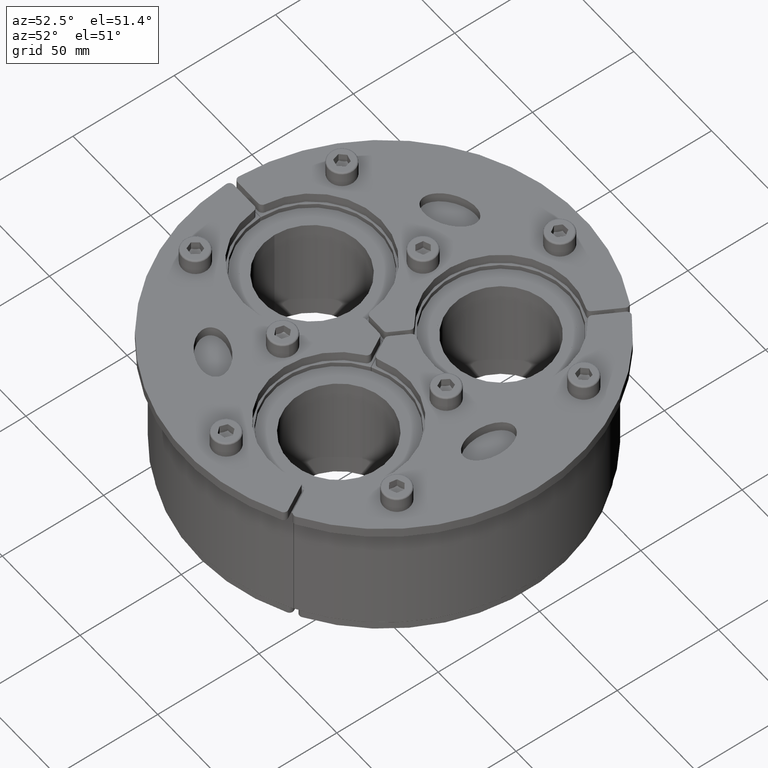
[diagram: clean part render]
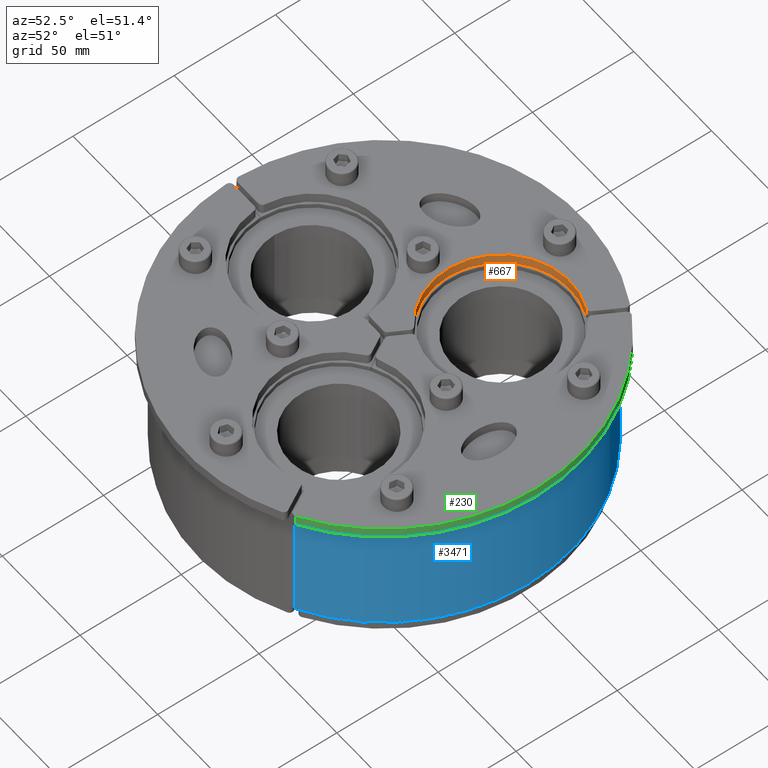
[diagram: same view with three faces highlighted in distinct colors, each labeled with its STEP entity id]
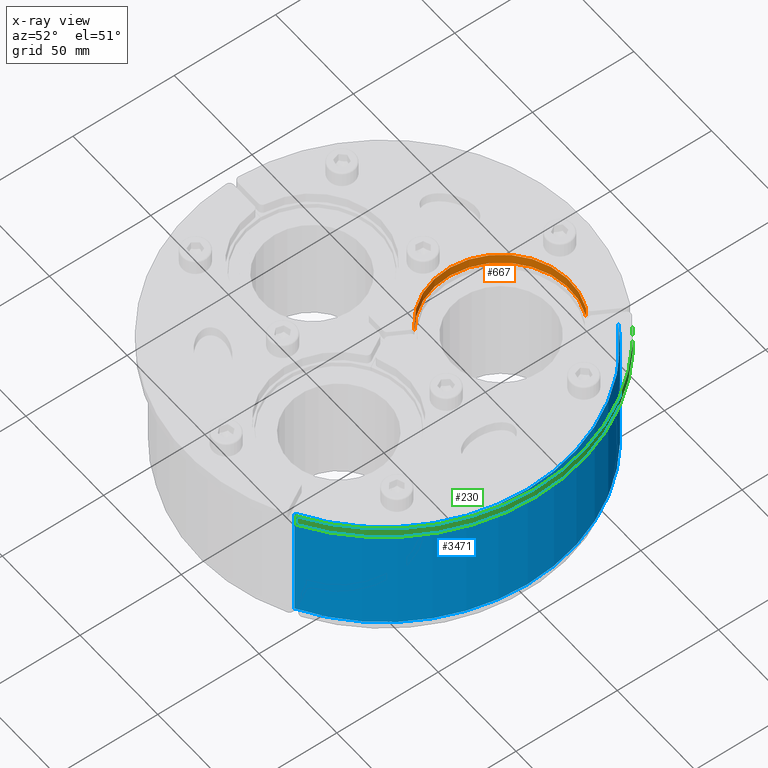
[diagram: x-ray of the same camera — body ghosted, the three highlighted faces saturated]
A machine part, auxiliary view with three faces highlighted in distinct colors.
The next image is the same camera in x-ray (body ghosted, the three faces saturated) — at least one of them is partly hidden behind the body in this view.
Their STEP definitions:

[orange] entity #667 — the highlighted cylindrical surface (partial cylindrical patch) has radius 34 mm, axis along (-0, -0, 1).
#297=CARTESIAN_POINT('',(-12.368261227879366,2.833333333333339,0.0));
#298=VERTEX_POINT('',#297);
#306=CARTESIAN_POINT('',(-80.131738772120627,2.833333333333333,0.0));
#307=VERTEX_POINT('',#306);
#308=CARTESIAN_POINT('',(-46.25,-1.387779E-016,0.0));
#309=DIRECTION('',(0.0,0.0,1.0));
#310=DIRECTION('',(-1.0,0.0,0.0));
#311=AXIS2_PLACEMENT_3D('',#308,#309,#310);
#312=CIRCLE('',#311,34.0);
#313=EDGE_CURVE('',#298,#307,#312,.T.);
#460=CARTESIAN_POINT('',(-80.131738772120627,2.833333333333333,5.0));
#461=VERTEX_POINT('',#460);
#469=CARTESIAN_POINT('',(-12.368261227879366,2.833333333333339,5.0));
#470=VERTEX_POINT('',#469);
#471=CARTESIAN_POINT('',(-46.25,-1.387779E-016,5.0));
#472=DIRECTION('',(0.0,0.0,-1.0));
#473=DIRECTION('',(-1.0,0.0,0.0));
#474=AXIS2_PLACEMENT_3D('',#471,#472,#473);
#475=CIRCLE('',#474,34.0);
#476=EDGE_CURVE('',#461,#470,#475,.T.);
#642=CARTESIAN_POINT('',(-12.368261227879369,2.833333333333338,5.0));
#643=DIRECTION('',(0.0,0.0,-1.0));
#644=VECTOR('',#643,5.0);
#645=LINE('',#642,#644);
#646=EDGE_CURVE('',#470,#298,#645,.T.);
#651=CARTESIAN_POINT('',(-46.25,-1.387779E-016,5.0));
#652=DIRECTION('',(0.0,0.0,-1.0));
#653=DIRECTION('',(-1.0,0.0,0.0));
#654=AXIS2_PLACEMENT_3D('',#651,#652,#653);
#655=CYLINDRICAL_SURFACE('',#654,34.0);
#656=ORIENTED_EDGE('',*,*,#646,.F.);
#657=ORIENTED_EDGE('',*,*,#476,.F.);
#658=CARTESIAN_POINT('',(-80.131738772120627,2.833333333333333,0.0));
#659=DIRECTION('',(0.0,0.0,1.0));
#660=VECTOR('',#659,5.0);
#661=LINE('',#658,#660);
#662=EDGE_CURVE('',#307,#461,#661,.T.);
#663=ORIENTED_EDGE('',*,*,#662,.F.);
#664=ORIENTED_EDGE('',*,*,#313,.F.);
#665=EDGE_LOOP('',(#656,#657,#663,#664));
#666=FACE_OUTER_BOUND('',#665,.T.);
#667=ADVANCED_FACE('',(#666),#655,.F.);

[blue] entity #3471 — the highlighted cylindrical surface (partial cylindrical patch) has radius 92.5 mm, axis along (0, -0, 1).
#2632=CARTESIAN_POINT('',(45.98910218844707,80.257413862524714,0.3));
#2633=VERTEX_POINT('',#2632);
#2755=CARTESIAN_POINT('',(-92.499510341211277,0.300976138828633,0.3));
#2756=VERTEX_POINT('',#2755);
#2797=CARTESIAN_POINT('',(45.989102188447063,80.2574138625247,59.699999999999996));
#2798=VERTEX_POINT('',#2797);
#2829=CARTESIAN_POINT('',(45.98910218844707,80.257413862524714,0.3));
#2830=DIRECTION('',(0.0,0.0,1.0));
#2831=VECTOR('',#2830,59.399999999999999);
#2832=LINE('',#2829,#2831);
#2833=EDGE_CURVE('',#2633,#2798,#2832,.T.);
#3016=CARTESIAN_POINT('',(-92.499510341211305,0.300976138828622,59.699999999999996));
#3017=VERTEX_POINT('',#3016);
#3050=CARTESIAN_POINT('',(-92.499510341211305,0.300976138828622,59.699999999999996));
#3051=DIRECTION('',(0.0,0.0,-1.0));
#3052=VECTOR('',#3051,59.399999999999999);
#3053=LINE('',#3050,#3052);
#3054=EDGE_CURVE('',#3017,#2756,#3053,.T.);
#3234=CARTESIAN_POINT('',(0.0,0.0,59.699999999999996));
#3235=DIRECTION('',(0.0,0.0,1.0));
#3236=DIRECTION('',(-0.5,0.866025403784439,0.0));
#3237=AXIS2_PLACEMENT_3D('',#3234,#3235,#3236);
#3238=CIRCLE('',#3237,92.499999999999986);
#3239=EDGE_CURVE('',#2798,#3017,#3238,.T.);
#3288=CARTESIAN_POINT('',(0.0,0.0,0.3));
#3289=DIRECTION('',(0.0,0.0,-1.0));
#3290=DIRECTION('',(-0.5,0.866025403784439,0.0));
#3291=AXIS2_PLACEMENT_3D('',#3288,#3289,#3290);
#3292=CIRCLE('',#3291,92.499999999999986);
#3293=EDGE_CURVE('',#2756,#2633,#3292,.T.);
#3460=CARTESIAN_POINT('',(0.0,0.0,0.0));
#3461=DIRECTION('',(0.0,0.0,1.0));
#3462=DIRECTION('',(-0.5,-0.866025403784439,0.0));
#3463=AXIS2_PLACEMENT_3D('',#3460,#3461,#3462);
#3464=CYLINDRICAL_SURFACE('',#3463,92.500000000000014);
#3465=ORIENTED_EDGE('',*,*,#3054,.F.);
#3466=ORIENTED_EDGE('',*,*,#3239,.F.);
#3467=ORIENTED_EDGE('',*,*,#2833,.F.);
#3468=ORIENTED_EDGE('',*,*,#3293,.F.);
#3469=EDGE_LOOP('',(#3465,#3466,#3467,#3468));
#3470=FACE_OUTER_BOUND('',#3469,.T.);
#3471=ADVANCED_FACE('',(#3470),#3464,.T.);

[green] entity #230 — the highlighted cylindrical surface (partial cylindrical patch) has radius 97.5 mm, axis along (0, -0, -1).
#161=CARTESIAN_POINT('',(46.073454261635156,85.927218111614764,5.0));
#162=VERTEX_POINT('',#161);
#180=CARTESIAN_POINT('',(46.073454261635156,85.927218111614764,0.0));
#181=VERTEX_POINT('',#180);
#189=CARTESIAN_POINT('',(46.073454261635149,85.927218111614764,0.0));
#190=DIRECTION('',(0.0,0.0,1.0));
#191=VECTOR('',#190,5.0);
#192=LINE('',#189,#191);
#193=EDGE_CURVE('',#181,#162,#192,.T.);
#198=CARTESIAN_POINT('',(0.0,0.0,0.0));
#199=DIRECTION('',(0.0,0.0,1.0));
#200=DIRECTION('',(0.491091388986829,0.871108057397581,0.0));
#201=AXIS2_PLACEMENT_3D('',#198,#199,#200);
#202=CYLINDRICAL_SURFACE('',#201,97.5);
#203=ORIENTED_EDGE('',*,*,#193,.F.);
#204=CARTESIAN_POINT('',(-97.451880892002279,3.062827225130911,0.0));
#205=VERTEX_POINT('',#204);
#206=CARTESIAN_POINT('',(0.0,0.0,0.0));
#207=DIRECTION('',(0.0,0.0,1.0));
#208=DIRECTION('',(0.491091388986829,0.871108057397581,0.0));
#209=AXIS2_PLACEMENT_3D('',#206,#207,#208);
#210=CIRCLE('',#209,97.5);
#211=EDGE_CURVE('',#181,#205,#210,.T.);
#212=ORIENTED_EDGE('',*,*,#211,.T.);
#213=CARTESIAN_POINT('',(-97.451880892002279,3.062827225130911,5.0));
#214=VERTEX_POINT('',#213);
#215=CARTESIAN_POINT('',(-97.451880892002279,3.062827225130911,5.0));
#216=DIRECTION('',(0.0,0.0,-1.0));
#217=VECTOR('',#216,5.0);
#218=LINE('',#215,#217);
#219=EDGE_CURVE('',#214,#205,#218,.T.);
#220=ORIENTED_EDGE('',*,*,#219,.F.);
#221=CARTESIAN_POINT('',(0.0,0.0,5.0));
#222=DIRECTION('',(0.0,0.0,-1.0));
#223=DIRECTION('',(0.491091388986829,0.871108057397581,0.0));
#224=AXIS2_PLACEMENT_3D('',#221,#222,#223);
#225=CIRCLE('',#224,97.5);
#226=EDGE_CURVE('',#214,#162,#225,.T.);
#227=ORIENTED_EDGE('',*,*,#226,.T.);
#228=EDGE_LOOP('',(#203,#212,#220,#227));
#229=FACE_OUTER_BOUND('',#228,.T.);
#230=ADVANCED_FACE('',(#229),#202,.T.);